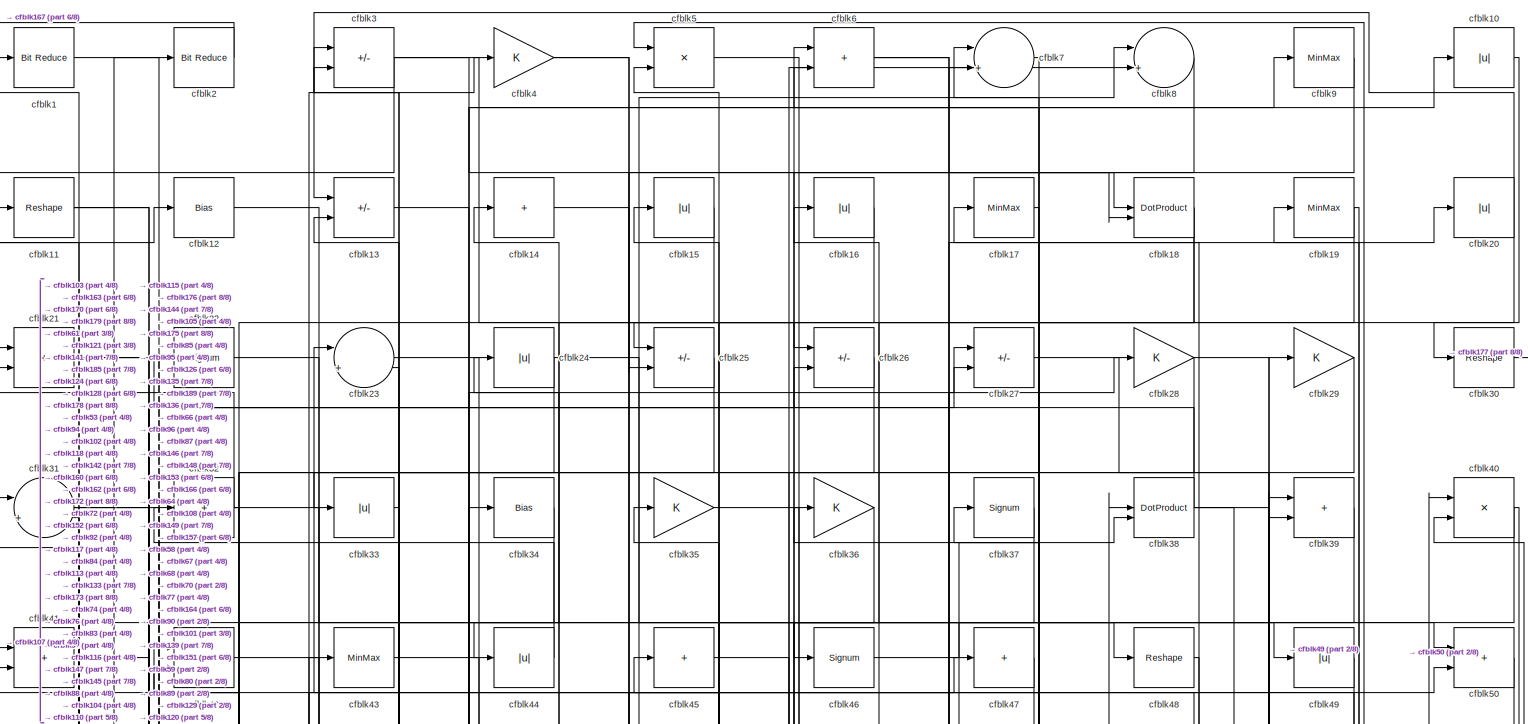
[diagram: root canvas - part 1/8, full width, top band]
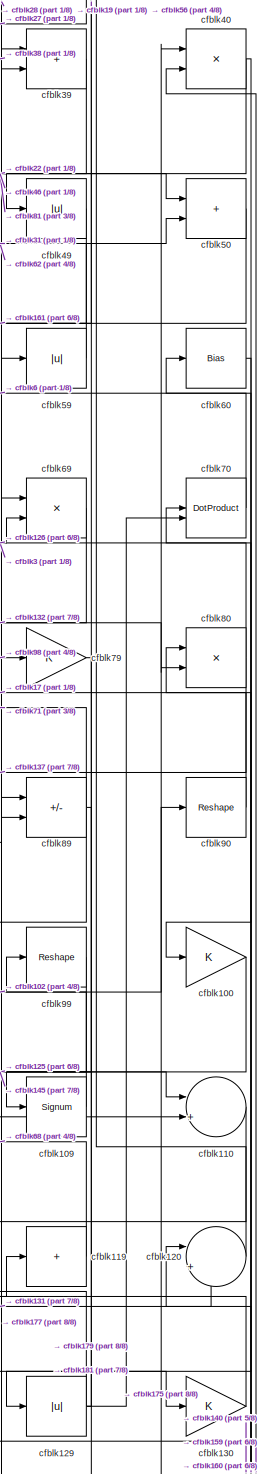
[diagram: root canvas - part 2/8, middle right region]
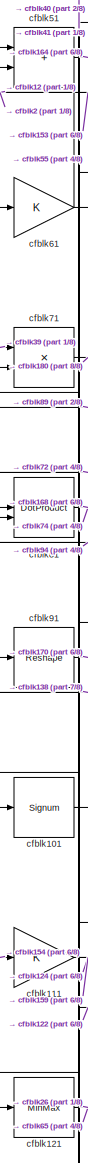
[diagram: root canvas - part 3/8, middle left region]
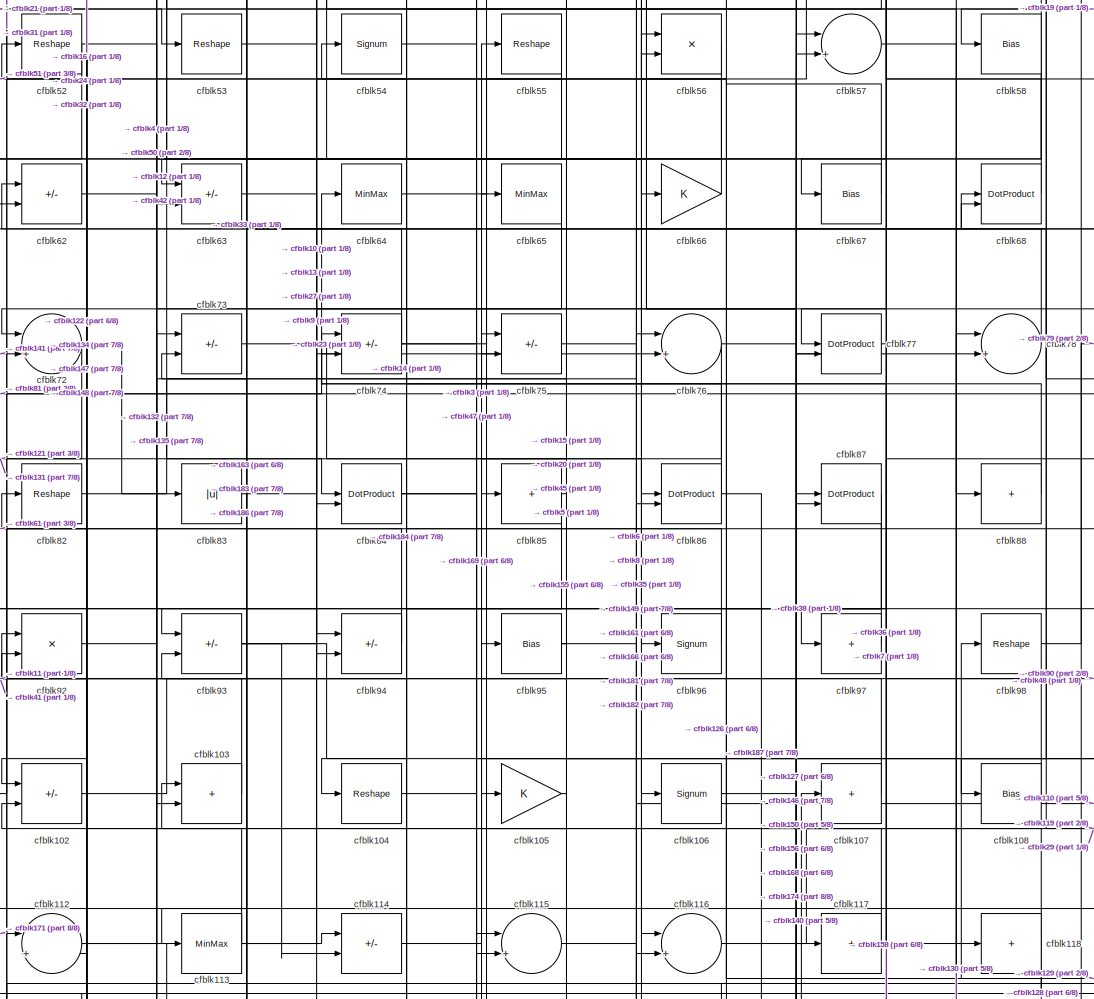
[diagram: root canvas - part 4/8, central region]
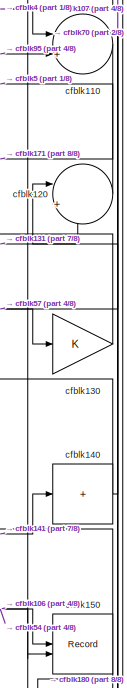
[diagram: root canvas - part 5/8, middle right region]
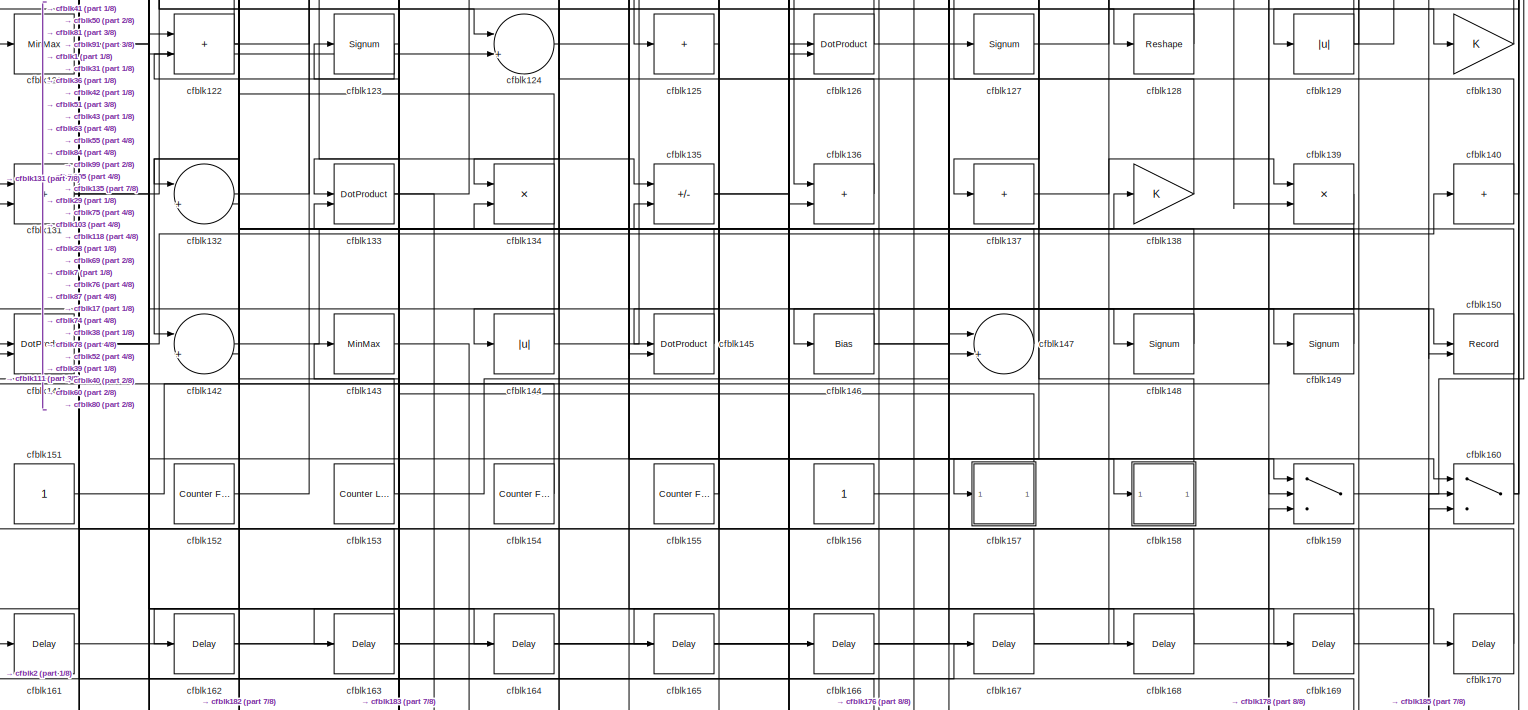
[diagram: root canvas - part 6/8, full width, bottom band]
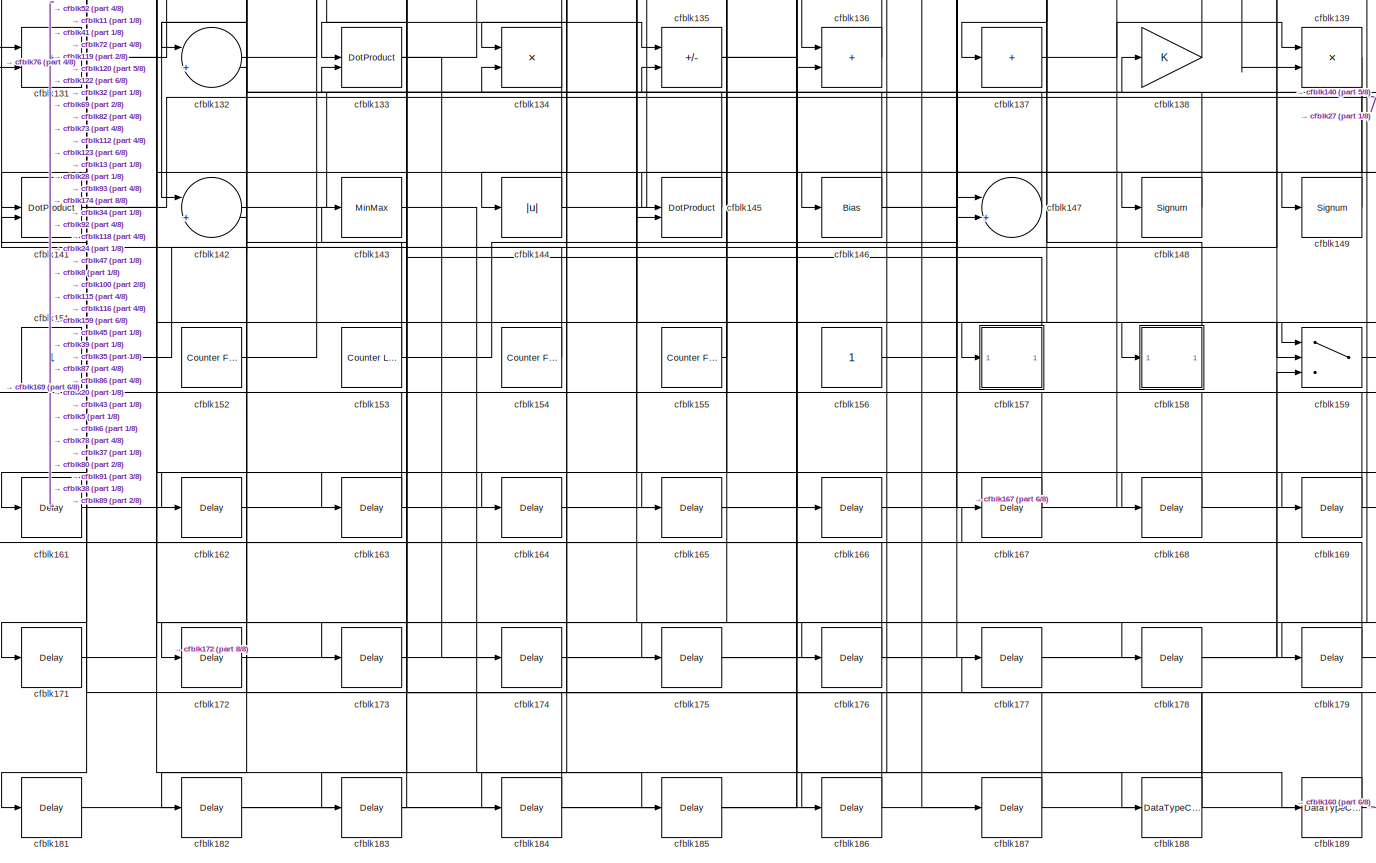
[diagram: root canvas - part 7/8, full width, bottom band]
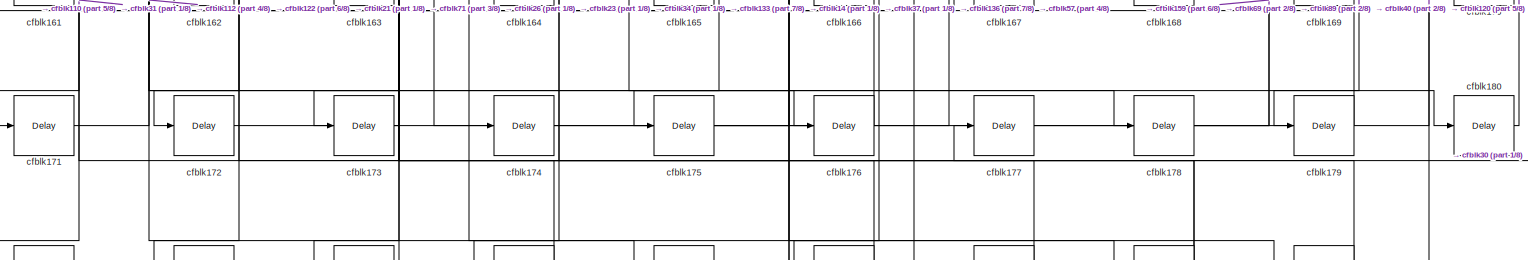
[diagram: root canvas - part 8/8, full width, bottom band]
MODEL slx_3358b75d20a9
KIND model
CONFIG AbsTol = auto
CONFIG EnableMultiTasking = off
CONFIG FixedStep = auto
CONFIG MaxStep = auto
CONFIG MinStep = auto
CONFIG RelTol = 1e-3
CONFIG SampleTimeConstraint = Unconstrained
CONFIG SolverName = VariableStepAuto
CONFIG StartTime = 0.0
CONFIG StopTime = 10.0
BLOCK [Reference] cfblk1  REF=hdlsllib/Logic and Bit
Operations/Bit Reduce
  SourceBlock = hdlsllib/Logic and Bit\nOperations/Bit Reduce
  SourceType = Bit Reduce
BLOCK [Abs] cfblk10
  SaturateOnIntegerOverflow = off
BLOCK [Gain] cfblk100
BLOCK [Signum] cfblk101
BLOCK [Sum] cfblk102
  IconShape = rectangular
  Inputs = +-
BLOCK [Sum] cfblk103
  IconShape = rectangular
BLOCK [Reshape] cfblk104
BLOCK [Gain] cfblk105
BLOCK [Signum] cfblk106
BLOCK [Sum] cfblk107
  IconShape = rectangular
  Inputs = +
BLOCK [Bias] cfblk108
  Bias = 0.0
  SaturateOnIntegerOverflow = off
BLOCK [Signum] cfblk109
BLOCK [Reshape] cfblk11
BLOCK [Sum] cfblk110
  Inputs = |++
BLOCK [Gain] cfblk111
BLOCK [Sum] cfblk112
  Inputs = |++
BLOCK [MinMax] cfblk113
BLOCK [Sum] cfblk114
  IconShape = rectangular
  Inputs = +-
BLOCK [Sum] cfblk115
  Inputs = |++
BLOCK [Sum] cfblk116
  Inputs = |++
BLOCK [Sum] cfblk117
  IconShape = rectangular
  Inputs = +
BLOCK [Sum] cfblk118
  IconShape = rectangular
  Inputs = +
BLOCK [Sum] cfblk119
  IconShape = rectangular
  Inputs = +
BLOCK [Bias] cfblk12
  Bias = 0.0
  SaturateOnIntegerOverflow = off
BLOCK [Sum] cfblk120
  Inputs = |++
BLOCK [MinMax] cfblk121
BLOCK [Sum] cfblk122
  IconShape = rectangular
BLOCK [Signum] cfblk123
BLOCK [Sum] cfblk124
  Inputs = |++
BLOCK [Sum] cfblk125
  IconShape = rectangular
  Inputs = +
BLOCK [DotProduct] cfblk126
  OutDataTypeStr = Inherit: Inherit via internal rule
BLOCK [Signum] cfblk127
BLOCK [Reshape] cfblk128
BLOCK [Abs] cfblk129
  SaturateOnIntegerOverflow = off
BLOCK [Sum] cfblk13
  IconShape = rectangular
  Inputs = +-
BLOCK [Gain] cfblk130
BLOCK [Sum] cfblk131
  IconShape = rectangular
BLOCK [Sum] cfblk132
  Inputs = |++
BLOCK [DotProduct] cfblk133
  OutDataTypeStr = Inherit: Inherit via internal rule
BLOCK [Product] cfblk134
  Inputs = */
  RndMeth = Zero
  SaturateOnIntegerOverflow = on
BLOCK [Sum] cfblk135
  IconShape = rectangular
  Inputs = +-
BLOCK [Sum] cfblk136
  IconShape = rectangular
BLOCK [Sum] cfblk137
  IconShape = rectangular
  Inputs = +
BLOCK [Gain] cfblk138
BLOCK [Product] cfblk139
  Inputs = */
  RndMeth = Zero
  SaturateOnIntegerOverflow = on
BLOCK [Sum] cfblk14
  IconShape = rectangular
  Inputs = +
BLOCK [Sum] cfblk140
  IconShape = rectangular
  Inputs = +
BLOCK [DotProduct] cfblk141
  OutDataTypeStr = Inherit: Inherit via internal rule
BLOCK [Sum] cfblk142
  Inputs = |++
BLOCK [MinMax] cfblk143
BLOCK [Abs] cfblk144
  SaturateOnIntegerOverflow = off
BLOCK [DotProduct] cfblk145
  OutDataTypeStr = Inherit: Inherit via internal rule
BLOCK [Bias] cfblk146
  Bias = 0.0
  SaturateOnIntegerOverflow = off
BLOCK [Sum] cfblk147
  Inputs = |++
BLOCK [Signum] cfblk148
BLOCK [Signum] cfblk149
BLOCK [Abs] cfblk15
  SaturateOnIntegerOverflow = off
BLOCK [Record] cfblk150
  CompatibilityTag = XY
  FileSettingsInternal = {"entries":[{"content":{"excelSettings":{"content":{},"type":"Streamout.ExcelSettings"}},"type":"Streamout.FileSettingStorage","uuid":""}],"packageUris":["http:\/\/schema.mathworks.com\/mf0\/streamout_blocks\/R2020a"],"version":"1.0"}
  Layout = [1 1]
  SignalsInternal = {"entries":[{"content":{"signals":[{"content":{"blockPath":[],"dimensions":[1],"domain":"","lineColor":"#a2142f","plots":[1],"port":1,"signalID":88,"signalName":"XY Graph:1"},"type":"RecordBlkView.Signal","uuid":""},{"content":{"blockPath":[],"dimensions":[1],"domain":"","lineColor":"#139fff","plots":[1],"port":2,"signalID":91,"signalName":"XY Graph:2"},"type":"RecordBlkView.Signal","uuid":""}]},"...<+142ch>
  VisualizationBindings = {"xyplotplugin":{"info":[{"series":[{"bindingParametersList":[{"parameter":"X-Axis","signalID":88,"signalName":"XY Graph:1"},{"parameter":"Y-Axis","signalID":91,"signalName":"XY Graph:2"}],"seriesID":42092}],"subplotID":1}]}}
  st = -1
BLOCK [Constant] cfblk151
  SampleTime = -1
BLOCK [Reference] cfblk152  REF=hdlsllib/Sources/Counter
Free-Running
  SourceBlock = hdlsllib/Sources/Counter\nFree-Running
  SourceType = Counter Free-Running
BLOCK [Reference] cfblk153  REF=hdlsllib/Sources/Counter
Limited
  SourceBlock = hdlsllib/Sources/Counter\nLimited
  SourceType = Counter Limited
BLOCK [Reference] cfblk154  REF=hdlsllib/Sources/Counter
Free-Running
  SourceBlock = hdlsllib/Sources/Counter\nFree-Running
  SourceType = Counter Free-Running
BLOCK [Reference] cfblk155  REF=hdlsllib/Sources/Counter
Free-Running
  SourceBlock = hdlsllib/Sources/Counter\nFree-Running
  SourceType = Counter Free-Running
BLOCK [Constant] cfblk156
  SampleTime = -1
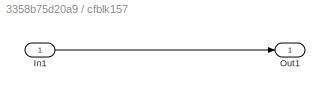
BLOCK [SubSystem] cfblk157
  LibrarySourceBlock = hdlsllib/Ports &\nSubsystems/Subsystem
BLOCK [Inport] cfblk157/In1
BLOCK [Outport] cfblk157/Out1
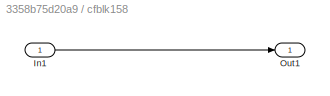
BLOCK [SubSystem] cfblk158
  LibrarySourceBlock = hdlsllib/Ports &\nSubsystems/Subsystem
BLOCK [Inport] cfblk158/In1
BLOCK [Outport] cfblk158/Out1
BLOCK [Switch] cfblk159
  InputSameDT = off
  SaturateOnIntegerOverflow = off
BLOCK [Abs] cfblk16
  SaturateOnIntegerOverflow = off
BLOCK [Switch] cfblk160
  InputSameDT = off
  SaturateOnIntegerOverflow = off
BLOCK [Delay] cfblk161
  InputPortMap = u0
  SampleTime = 1
BLOCK [Delay] cfblk162
  InputPortMap = u0
  SampleTime = 1
BLOCK [Delay] cfblk163
  InputPortMap = u0
  SampleTime = 1
BLOCK [Delay] cfblk164
  InputPortMap = u0
  SampleTime = 1
BLOCK [Delay] cfblk165
  InputPortMap = u0
  SampleTime = 1
BLOCK [Delay] cfblk166
  InputPortMap = u0
  SampleTime = 1
BLOCK [Delay] cfblk167
  InputPortMap = u0
  SampleTime = 1
BLOCK [Delay] cfblk168
  InputPortMap = u0
  SampleTime = 1
BLOCK [Delay] cfblk169
  InputPortMap = u0
  SampleTime = 1
BLOCK [MinMax] cfblk17
BLOCK [Delay] cfblk170
  InputPortMap = u0
  SampleTime = 1
BLOCK [Delay] cfblk171
  InputPortMap = u0
  SampleTime = 1
BLOCK [Delay] cfblk172
  InputPortMap = u0
  SampleTime = 1
BLOCK [Delay] cfblk173
  InputPortMap = u0
  SampleTime = 1
BLOCK [Delay] cfblk174
  InputPortMap = u0
  SampleTime = 1
BLOCK [Delay] cfblk175
  InputPortMap = u0
  SampleTime = 1
BLOCK [Delay] cfblk176
  InputPortMap = u0
  SampleTime = 1
BLOCK [Delay] cfblk177
  InputPortMap = u0
  SampleTime = 1
BLOCK [Delay] cfblk178
  InputPortMap = u0
  SampleTime = 1
BLOCK [Delay] cfblk179
  InputPortMap = u0
  SampleTime = 1
BLOCK [DotProduct] cfblk18
  OutDataTypeStr = Inherit: Inherit via internal rule
BLOCK [Delay] cfblk180
  InputPortMap = u0
  SampleTime = 1
BLOCK [Delay] cfblk181
  InputPortMap = u0
  SampleTime = 1
BLOCK [Delay] cfblk182
  InputPortMap = u0
  SampleTime = 1
BLOCK [Delay] cfblk183
  InputPortMap = u0
  SampleTime = 1
BLOCK [Delay] cfblk184
  InputPortMap = u0
  SampleTime = 1
BLOCK [Delay] cfblk185
  InputPortMap = u0
  SampleTime = 1
BLOCK [Delay] cfblk186
  InputPortMap = u0
  SampleTime = 1
BLOCK [Delay] cfblk187
  InputPortMap = u0
  SampleTime = 1
BLOCK [DataTypeConversion] cfblk188
  RndMeth = Floor
  SaturateOnIntegerOverflow = off
BLOCK [DataTypeConversion] cfblk189
  OutDataTypeStr = uint8
  RndMeth = Floor
  SaturateOnIntegerOverflow = off
BLOCK [MinMax] cfblk19
BLOCK [Reference] cfblk2  REF=hdlsllib/Logic and Bit
Operations/Bit Reduce
  SourceBlock = hdlsllib/Logic and Bit\nOperations/Bit Reduce
  SourceType = Bit Reduce
BLOCK [Abs] cfblk20
  SaturateOnIntegerOverflow = off
BLOCK [Sum] cfblk21
  IconShape = rectangular
BLOCK [Signum] cfblk22
BLOCK [Sum] cfblk23
  Inputs = |++
BLOCK [Abs] cfblk24
  SaturateOnIntegerOverflow = off
BLOCK [Sum] cfblk25
  IconShape = rectangular
  Inputs = +-
BLOCK [Sum] cfblk26
  IconShape = rectangular
  Inputs = +-
BLOCK [Sum] cfblk27
  IconShape = rectangular
  Inputs = +-
BLOCK [Gain] cfblk28
BLOCK [Gain] cfblk29
BLOCK [Sum] cfblk3
  IconShape = rectangular
  Inputs = +-
BLOCK [Reshape] cfblk30
BLOCK [Sum] cfblk31
  Inputs = |++
BLOCK [Sum] cfblk32
  IconShape = rectangular
  Inputs = +
BLOCK [Abs] cfblk33
  SaturateOnIntegerOverflow = off
BLOCK [Bias] cfblk34
  Bias = 0.0
  SaturateOnIntegerOverflow = off
BLOCK [Gain] cfblk35
BLOCK [Gain] cfblk36
BLOCK [Signum] cfblk37
BLOCK [DotProduct] cfblk38
  OutDataTypeStr = Inherit: Inherit via internal rule
BLOCK [Sum] cfblk39
  IconShape = rectangular
BLOCK [Gain] cfblk4
BLOCK [Product] cfblk40
  Inputs = */
  RndMeth = Zero
  SaturateOnIntegerOverflow = on
BLOCK [Sum] cfblk41
  IconShape = rectangular
BLOCK [Product] cfblk42
  Inputs = */
  RndMeth = Zero
  SaturateOnIntegerOverflow = on
BLOCK [MinMax] cfblk43
BLOCK [Abs] cfblk44
  SaturateOnIntegerOverflow = off
BLOCK [Sum] cfblk45
  IconShape = rectangular
  Inputs = +
BLOCK [Signum] cfblk46
BLOCK [Sum] cfblk47
  IconShape = rectangular
  Inputs = +
BLOCK [Reshape] cfblk48
BLOCK [Abs] cfblk49
  SaturateOnIntegerOverflow = off
BLOCK [Product] cfblk5
  Inputs = */
  RndMeth = Zero
  SaturateOnIntegerOverflow = on
BLOCK [Sum] cfblk50
  IconShape = rectangular
BLOCK [Sum] cfblk51
  IconShape = rectangular
BLOCK [Reshape] cfblk52
BLOCK [Reshape] cfblk53
BLOCK [Signum] cfblk54
BLOCK [Reshape] cfblk55
BLOCK [Product] cfblk56
  Inputs = */
  RndMeth = Zero
  SaturateOnIntegerOverflow = on
BLOCK [Sum] cfblk57
  Inputs = |++
BLOCK [Bias] cfblk58
  Bias = 0.0
  SaturateOnIntegerOverflow = off
BLOCK [Abs] cfblk59
  SaturateOnIntegerOverflow = off
BLOCK [Sum] cfblk6
  IconShape = rectangular
BLOCK [Bias] cfblk60
  Bias = 0.0
  SaturateOnIntegerOverflow = off
BLOCK [Gain] cfblk61
BLOCK [Sum] cfblk62
  IconShape = rectangular
  Inputs = +-
BLOCK [Sum] cfblk63
  IconShape = rectangular
  Inputs = +-
BLOCK [MinMax] cfblk64
BLOCK [MinMax] cfblk65
BLOCK [Gain] cfblk66
BLOCK [Bias] cfblk67
  Bias = 0.0
  SaturateOnIntegerOverflow = off
BLOCK [DotProduct] cfblk68
  OutDataTypeStr = Inherit: Inherit via internal rule
BLOCK [Product] cfblk69
  Inputs = */
  RndMeth = Zero
  SaturateOnIntegerOverflow = on
BLOCK [Sum] cfblk7
  Inputs = |++
BLOCK [DotProduct] cfblk70
  OutDataTypeStr = Inherit: Inherit via internal rule
BLOCK [Product] cfblk71
  Inputs = */
  RndMeth = Zero
  SaturateOnIntegerOverflow = on
BLOCK [Sum] cfblk72
  Inputs = |++
BLOCK [Sum] cfblk73
  IconShape = rectangular
  Inputs = +-
BLOCK [Sum] cfblk74
  IconShape = rectangular
  Inputs = +-
BLOCK [Sum] cfblk75
  IconShape = rectangular
  Inputs = +-
BLOCK [Sum] cfblk76
  Inputs = |++
BLOCK [DotProduct] cfblk77
  OutDataTypeStr = Inherit: Inherit via internal rule
BLOCK [Sum] cfblk78
  Inputs = |++
BLOCK [Gain] cfblk79
BLOCK [Sum] cfblk8
  Inputs = |++
BLOCK [Product] cfblk80
  Inputs = */
  RndMeth = Zero
  SaturateOnIntegerOverflow = on
BLOCK [DotProduct] cfblk81
  OutDataTypeStr = Inherit: Inherit via internal rule
BLOCK [Reshape] cfblk82
BLOCK [Abs] cfblk83
  SaturateOnIntegerOverflow = off
BLOCK [DotProduct] cfblk84
  OutDataTypeStr = Inherit: Inherit via internal rule
BLOCK [Sum] cfblk85
  IconShape = rectangular
  Inputs = +
BLOCK [DotProduct] cfblk86
  OutDataTypeStr = Inherit: Inherit via internal rule
BLOCK [DotProduct] cfblk87
  OutDataTypeStr = Inherit: Inherit via internal rule
BLOCK [Sum] cfblk88
  IconShape = rectangular
  Inputs = +
BLOCK [Sum] cfblk89
  IconShape = rectangular
  Inputs = +-
BLOCK [MinMax] cfblk9
BLOCK [Reshape] cfblk90
BLOCK [Reshape] cfblk91
BLOCK [Product] cfblk92
  Inputs = */
  RndMeth = Zero
  SaturateOnIntegerOverflow = on
BLOCK [Sum] cfblk93
  IconShape = rectangular
  Inputs = +-
BLOCK [Sum] cfblk94
  IconShape = rectangular
  Inputs = +-
BLOCK [Bias] cfblk95
  Bias = 0.0
  SaturateOnIntegerOverflow = off
BLOCK [Signum] cfblk96
BLOCK [Sum] cfblk97
  IconShape = rectangular
  Inputs = +
BLOCK [Reshape] cfblk98
BLOCK [Reshape] cfblk99
LINE cfblk100:1 -> cfblk145:1
NET cfblk101:1 -> cfblk39:1, cfblk71:1
LINE cfblk102:1 -> cfblk90:1
LINE cfblk103:1 -> cfblk11:1
LINE cfblk104:1 -> cfblk47:1
LINE cfblk105:1 -> cfblk5:2
LINE cfblk106:1 -> cfblk150:1
LINE cfblk107:1 -> cfblk41:1
LINE cfblk108:1 -> cfblk7:1
LINE cfblk109:1 -> cfblk99:1
LINE cfblk10:1 -> cfblk30:1
LINE cfblk110:1 -> cfblk171:1
NET cfblk111:1 -> cfblk124:2, cfblk159:2
NET cfblk112:1 -> cfblk135:1, cfblk75:1
NET cfblk113:1 -> cfblk102:2, cfblk114:1, cfblk56:1
LINE cfblk114:1 -> cfblk55:1
LINE cfblk115:1 -> cfblk149:1
LINE cfblk116:1 -> cfblk29:1
NET cfblk117:1 -> cfblk75:2, cfblk98:1
NET cfblk118:1 -> cfblk134:1, cfblk42:2
LINE cfblk119:1 -> cfblk68:2
NET cfblk11:1 -> cfblk145:2, cfblk66:1
LINE cfblk120:1 -> cfblk5:1
NET cfblk121:1 -> cfblk26:2, cfblk65:1
NET cfblk122:1 -> cfblk182:1, cfblk63:2, cfblk81:2
NET cfblk123:1 -> cfblk122:2, cfblk183:1
LINE cfblk124:1 -> cfblk160:1
LINE cfblk125:1 -> cfblk165:1
NET cfblk126:1 -> cfblk103:1, cfblk69:2
LINE cfblk127:1 -> cfblk78:1
LINE cfblk128:1 -> cfblk52:1
NET cfblk129:1 -> cfblk19:1, cfblk56:2, cfblk70:2
LINE cfblk12:1 -> cfblk117:1
LINE cfblk130:1 -> cfblk95:1
NET cfblk131:1 -> cfblk119:1, cfblk120:2
LINE cfblk132:1 -> cfblk73:1
NET cfblk133:1 -> cfblk174:1, cfblk34:1
NET cfblk134:1 -> cfblk142:1, cfblk92:2
NET cfblk135:1 -> cfblk159:1, cfblk8:2
LINE cfblk136:1 -> cfblk35:1
LINE cfblk137:1 -> cfblk139:1
LINE cfblk138:1 -> cfblk91:1
LINE cfblk139:1 -> cfblk186:1
LINE cfblk13:1 -> cfblk76:2
NET cfblk140:1 -> cfblk107:1, cfblk70:1
NET cfblk141:1 -> cfblk140:1, cfblk27:2, cfblk72:2
LINE cfblk142:1 -> cfblk138:1
LINE cfblk143:1 -> cfblk188:1
NET cfblk144:1 -> cfblk13:2, cfblk8:1
LINE cfblk145:1 -> cfblk24:1
NET cfblk146:1 -> cfblk20:1, cfblk78:2, cfblk92:1
LINE cfblk147:1 -> cfblk112:2
LINE cfblk148:1 -> cfblk82:1
LINE cfblk149:1 -> cfblk37:1
LINE cfblk14:1 -> cfblk176:1
LINE cfblk151:1 -> cfblk39:2
LINE cfblk152:1 -> cfblk43:1
NET cfblk153:1 -> cfblk28:1, cfblk51:1
LINE cfblk154:1 -> cfblk111:1
LINE cfblk155:1 -> cfblk105:1
LINE cfblk156:1 -> cfblk118:1
LINE cfblk157/In1:1 -> cfblk157/Out1:1
LINE cfblk157:1 -> cfblk123:1
LINE cfblk158/In1:1 -> cfblk158/Out1:1
LINE cfblk158:1 -> cfblk74:1
LINE cfblk159:1 -> cfblk40:2
LINE cfblk15:1 -> cfblk25:1
NET cfblk160:1 -> cfblk42:1, cfblk60:1, cfblk80:1
LINE cfblk161:1 -> cfblk76:1
LINE cfblk162:1 -> cfblk160:2
LINE cfblk163:1 -> cfblk41:2
LINE cfblk164:1 -> cfblk38:1
LINE cfblk165:1 -> cfblk126:1
LINE cfblk166:1 -> cfblk7:2
LINE cfblk167:1 -> cfblk135:2
LINE cfblk168:1 -> cfblk87:1
LINE cfblk169:1 -> cfblk131:1
LINE cfblk16:1 -> cfblk102:1
LINE cfblk170:1 -> cfblk1:1
LINE cfblk171:1 -> cfblk112:1
LINE cfblk172:1 -> cfblk136:2
LINE cfblk173:1 -> cfblk23:2
LINE cfblk174:1 -> cfblk57:2
LINE cfblk175:1 -> cfblk40:1
LINE cfblk176:1 -> cfblk122:1
LINE cfblk177:1 -> cfblk69:1
LINE cfblk178:1 -> cfblk159:3
LINE cfblk179:1 -> cfblk31:2
LINE cfblk17:1 -> cfblk157:1
LINE cfblk180:1 -> cfblk120:1
LINE cfblk181:1 -> cfblk86:2
LINE cfblk182:1 -> cfblk116:2
LINE cfblk183:1 -> cfblk93:2
LINE cfblk184:1 -> cfblk141:2
LINE cfblk185:1 -> cfblk160:3
LINE cfblk186:1 -> cfblk73:2
LINE cfblk187:1 -> cfblk132:2
NET cfblk188:1 -> cfblk133:2, cfblk134:2
LINE cfblk189:1 -> cfblk143:1
NET cfblk18:1 -> cfblk44:1, cfblk46:1
NET cfblk19:1 -> cfblk58:1, cfblk67:1
LINE cfblk1:1 -> cfblk124:1
NET cfblk20:1 -> cfblk13:1, cfblk85:1
NET cfblk21:1 -> cfblk178:1, cfblk53:1
LINE cfblk22:1 -> cfblk50:1
LINE cfblk23:1 -> cfblk116:1
NET cfblk24:1 -> cfblk48:1, cfblk72:1
LINE cfblk25:1 -> cfblk33:1
LINE cfblk26:1 -> cfblk172:1
LINE cfblk27:1 -> cfblk89:1
NET cfblk28:1 -> cfblk133:1, cfblk80:2
LINE cfblk29:1 -> cfblk126:2
LINE cfblk2:1 -> cfblk167:1
LINE cfblk30:1 -> cfblk177:1
NET cfblk31:1 -> cfblk128:1, cfblk94:2
NET cfblk32:1 -> cfblk142:2, cfblk21:1, cfblk88:1
LINE cfblk33:1 -> cfblk113:1
LINE cfblk34:1 -> cfblk173:1
LINE cfblk35:1 -> cfblk87:2
LINE cfblk36:1 -> cfblk162:1
LINE cfblk37:1 -> cfblk175:1
NET cfblk38:1 -> cfblk139:2, cfblk22:1, cfblk59:1
LINE cfblk39:1 -> cfblk136:1
NET cfblk3:1 -> cfblk115:1, cfblk18:2, cfblk21:2
NET cfblk40:1 -> cfblk100:1, cfblk81:1
NET cfblk41:1 -> cfblk101:1, cfblk185:1
LINE cfblk42:1 -> cfblk84:1
LINE cfblk43:1 -> cfblk147:1
LINE cfblk44:1 -> cfblk32:1
LINE cfblk45:1 -> cfblk189:1
LINE cfblk46:1 -> cfblk49:1
LINE cfblk47:1 -> cfblk144:1
LINE cfblk48:1 -> cfblk108:1
LINE cfblk49:1 -> cfblk89:2
NET cfblk4:1 -> cfblk110:1, cfblk26:1
LINE cfblk50:1 -> cfblk161:1
LINE cfblk51:1 -> cfblk164:1
NET cfblk52:1 -> cfblk141:1, cfblk77:2
LINE cfblk53:1 -> cfblk10:1
LINE cfblk54:1 -> cfblk150:2
NET cfblk55:1 -> cfblk163:1, cfblk51:2
LINE cfblk56:1 -> cfblk63:1
LINE cfblk57:1 -> cfblk130:1
NET cfblk58:1 -> cfblk103:2, cfblk23:1, cfblk62:2
LINE cfblk59:1 -> cfblk31:1
LINE cfblk5:1 -> cfblk147:2
LINE cfblk60:1 -> cfblk129:1
NET cfblk61:1 -> cfblk12:1, cfblk2:1
LINE cfblk62:1 -> cfblk50:2
LINE cfblk63:1 -> cfblk94:1
LINE cfblk64:1 -> cfblk38:2
LINE cfblk65:1 -> cfblk84:2
LINE cfblk66:1 -> cfblk6:1
LINE cfblk67:1 -> cfblk16:1
LINE cfblk68:1 -> cfblk36:1
LINE cfblk69:1 -> cfblk132:1
NET cfblk6:1 -> cfblk148:1, cfblk18:1
LINE cfblk70:1 -> cfblk6:2
LINE cfblk71:1 -> cfblk180:1
NET cfblk72:1 -> cfblk121:1, cfblk83:1
LINE cfblk73:1 -> cfblk86:1
NET cfblk74:1 -> cfblk169:1, cfblk3:2, cfblk57:1
LINE cfblk75:1 -> cfblk166:1
NET cfblk76:1 -> cfblk127:1, cfblk131:2
LINE cfblk77:1 -> cfblk97:1
LINE cfblk78:1 -> cfblk62:1
LINE cfblk79:1 -> cfblk109:1
LINE cfblk7:1 -> cfblk77:1
NET cfblk80:1 -> cfblk137:1, cfblk3:1
NET cfblk81:1 -> cfblk168:1, cfblk74:2
LINE cfblk82:1 -> cfblk68:1
LINE cfblk83:1 -> cfblk27:1
NET cfblk84:1 -> cfblk115:2, cfblk158:1
NET cfblk85:1 -> cfblk104:1, cfblk15:1
NET cfblk86:1 -> cfblk187:1, cfblk64:1
NET cfblk87:1 -> cfblk146:1, cfblk184:1
LINE cfblk88:1 -> cfblk14:1
NET cfblk89:1 -> cfblk179:1, cfblk181:1, cfblk71:2
LINE cfblk8:1 -> cfblk96:1
LINE cfblk90:1 -> cfblk17:1
LINE cfblk91:1 -> cfblk170:1
LINE cfblk92:1 -> cfblk4:1
NET cfblk93:1 -> cfblk106:1, cfblk114:2, cfblk9:1
LINE cfblk94:1 -> cfblk61:1
NET cfblk95:1 -> cfblk110:2, cfblk45:1
LINE cfblk96:1 -> cfblk54:1
LINE cfblk97:1 -> cfblk93:1
LINE cfblk98:1 -> cfblk79:1
LINE cfblk99:1 -> cfblk125:1
LINE cfblk9:1 -> cfblk25:2
note: NET lines group one-source signal fan-out (src -> all destinations, sorted); 1:1 wires keep LINE
